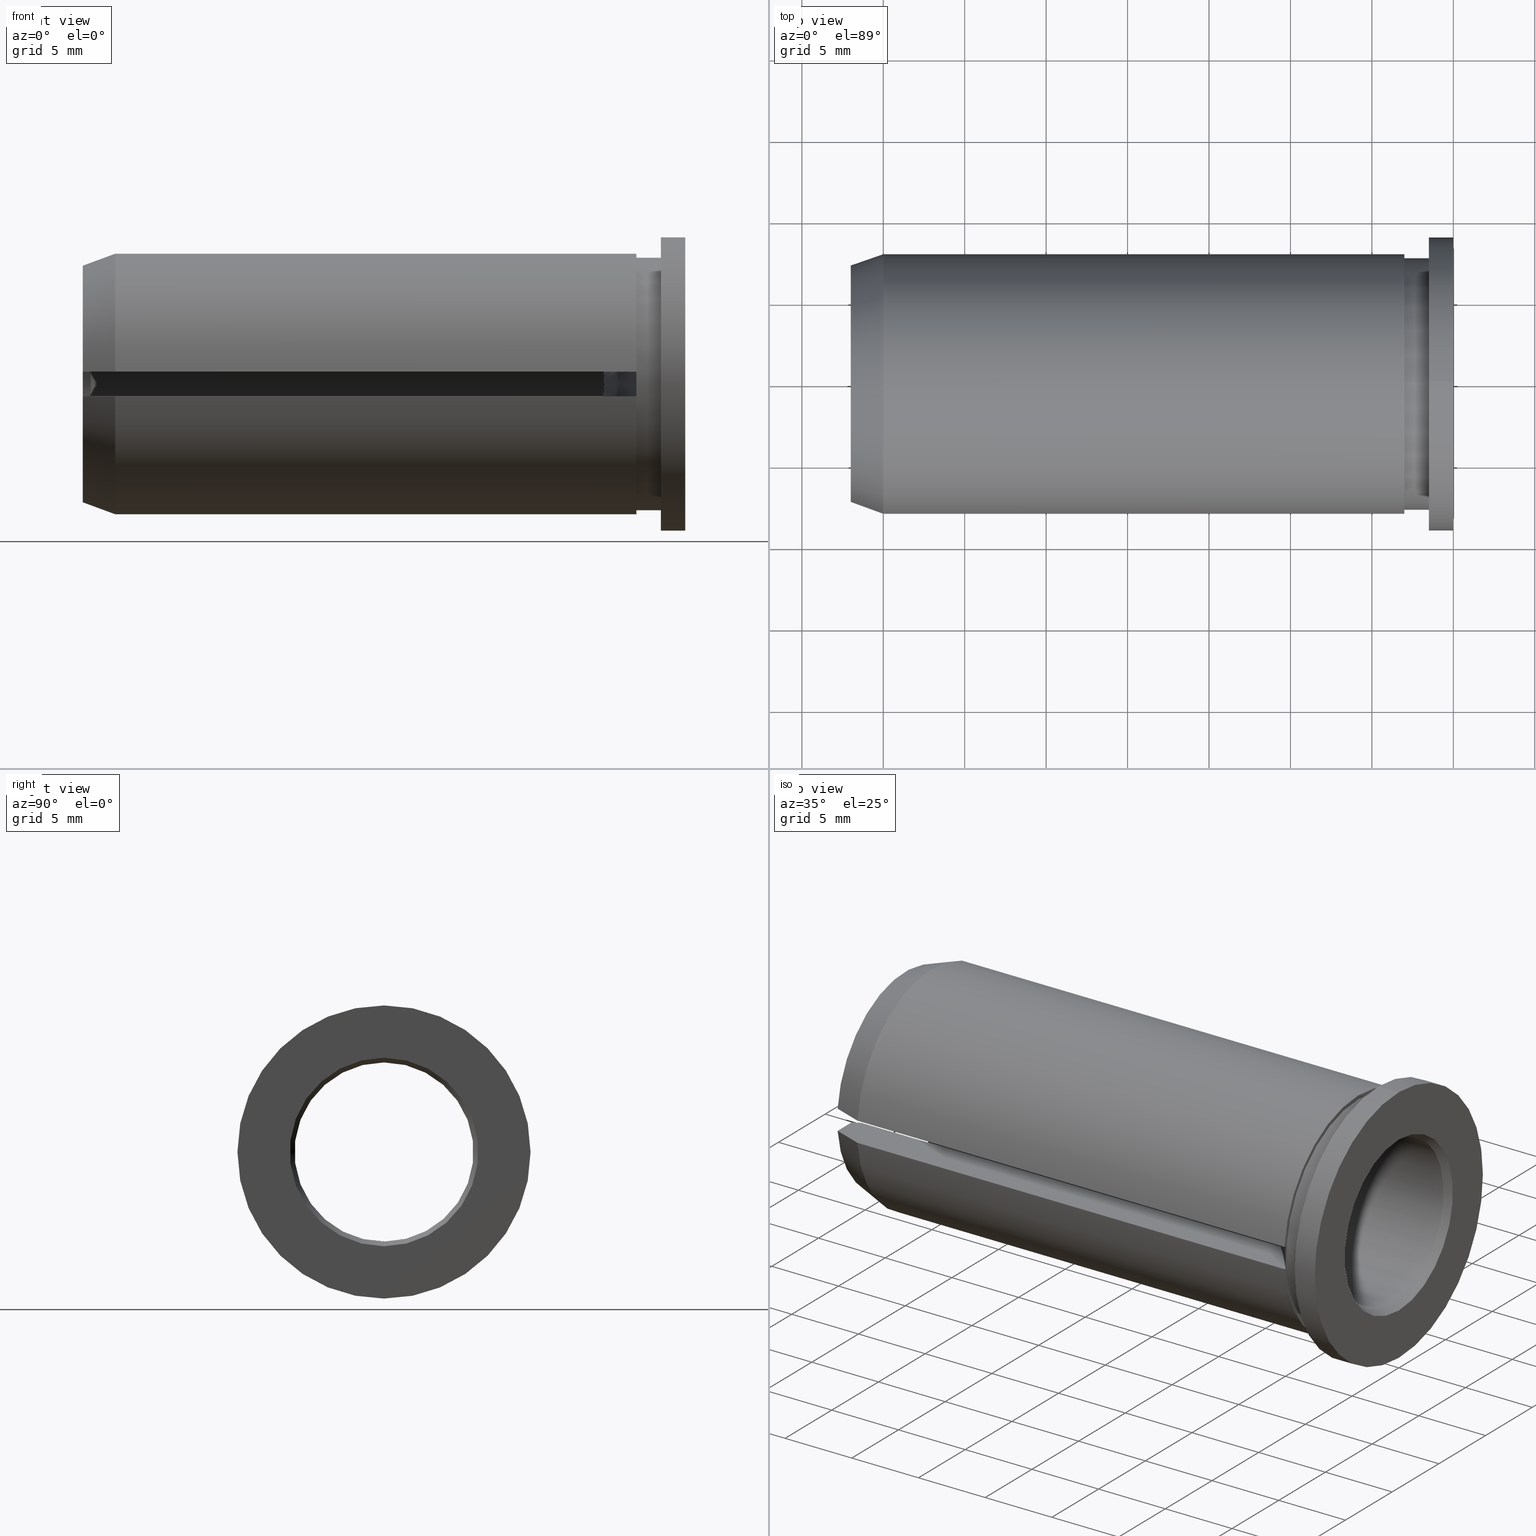
[diagram: canonical four-view strip — front | top / right | iso, engineering-drawing reading convention]
A machine part, canonical four-view strip (front | top / right | iso — engineering-drawing reading convention). The complete STEP part file that produces these views, byte-faithful:
ISO-10303-21;
HEADER;
FILE_DESCRIPTION (( 'STEP AP214' ),
    '1' );
FILE_NAME ('U11.U16.001.037.STEP',
    '2020-08-14T11:07:08',
    ( '' ),
    ( '' ),
    'SwSTEP 2.0',
    'SolidWorks 2017',
    '' );
FILE_SCHEMA (( 'AUTOMOTIVE_DESIGN' ));
ENDSEC;

DATA;
#1 = FACE_OUTER_BOUND ( 'NONE', #181, .T. ) ;
#2 = DIRECTION ( 'NONE',  ( -1.000000000000000000, -0.0000000000000000000, -0.0000000000000000000 ) ) ;
#3 = ORIENTED_EDGE ( 'NONE', *, *, #169, .F. ) ;
#4 = ORIENTED_EDGE ( 'NONE', *, *, #369, .F. ) ;
#5 = CARTESIAN_POINT ( 'NONE',  ( -5.026359045876161800, -5.448623679425841400, -0.7500000000000000000 ) ) ;
#6 = CARTESIAN_POINT ( 'NONE',  ( -37.00000000000000000, -7.233280709968928700, -0.7500000000000000000 ) ) ;
#7 = SURFACE_STYLE_FILL_AREA ( #55 ) ;
#8 = CIRCLE ( 'NONE', #173, 5.788675134594814000 ) ;
#9 =( GEOMETRIC_REPRESENTATION_CONTEXT ( 3 ) GLOBAL_UNCERTAINTY_ASSIGNED_CONTEXT ( ( #93 ) ) GLOBAL_UNIT_ASSIGNED_CONTEXT ( ( #222, #191, #195 ) ) REPRESENTATION_CONTEXT ( 'NONE', 'WORKASPACE' ) );
#10 = B_SPLINE_CURVE_WITH_KNOTS ( 'NONE', 3,
 ( #270, #239, #271, #413 ),
 .UNSPECIFIED., .F., .F.,
 ( 4, 4 ),
 ( 0.009711911398750116400, 0.01184148182100318500 ),
 .UNSPECIFIED. ) ;
#11 = DIRECTION ( 'NONE',  ( 1.000000000000000000, 0.0000000000000000000, 0.0000000000000000000 ) ) ;
#12 = CARTESIAN_POINT ( 'NONE',  ( -3.000000000000002700, -7.836232103263177400, -0.7500000000000000000 ) ) ;
#13 = B_SPLINE_CURVE_WITH_KNOTS ( 'NONE', 3,
 ( #204, #72, #299, #6 ),
 .UNSPECIFIED., .F., .F.,
 ( 4, 4 ),
 ( 0.009711911398750116400, 0.01184148182100318500 ),
 .UNSPECIFIED. ) ;
#14 = PLANE ( 'NONE',  #251 ) ;
#15 = FACE_BOUND ( 'NONE', #287, .T. ) ;
#16 = ORIENTED_EDGE ( 'NONE', *, *, #98, .T. ) ;
#17 = DIRECTION ( 'NONE',  ( 0.0000000000000000000, 0.0000000000000000000, 1.000000000000000000 ) ) ;
#18 = AXIS2_PLACEMENT_3D ( 'NONE', #117, #309, #109 ) ;
#19 = CARTESIAN_POINT ( 'NONE',  ( 0.0000000000000000000, 0.0000000000000000000, 0.0000000000000000000 ) ) ;
#20 = DIRECTION ( 'NONE',  ( 0.0000000000000000000, 1.000000000000000000, 0.0000000000000000000 ) ) ;
#21 = ORIENTED_EDGE ( 'NONE', *, *, #199, .F. ) ;
#22 = DIRECTION ( 'NONE',  ( -1.000000000000000000, 0.0000000000000000000, 0.0000000000000000000 ) ) ;
#23 = ADVANCED_FACE ( 'NONE', ( #263, #306 ), #261, .T. ) ;
#24 = CARTESIAN_POINT ( 'NONE',  ( -36.50000000000000000, -5.448623679425841400, -0.7500000000000000000 ) ) ;
#25 = LINE ( 'NONE', #48, #281 ) ;
#26 = MECHANICAL_DESIGN_GEOMETRIC_PRESENTATION_REPRESENTATION (  '', ( #229 ), #331 ) ;
#27 = ORIENTED_EDGE ( 'NONE', *, *, #377, .F. ) ;
#28 = APPLICATION_PROTOCOL_DEFINITION ( 'draft international standard', 'automotive_design', 1998, #395 ) ;
#29 =( NAMED_UNIT ( * ) PLANE_ANGLE_UNIT ( ) SI_UNIT ( $, .RADIAN. ) );
#30 = PRODUCT_DEFINITION_CONTEXT ( 'detailed design', #395, 'design' ) ;
#31 = DIRECTION ( 'NONE',  ( 1.000000000000000000, 0.0000000000000000000, 0.0000000000000000000 ) ) ;
#32 = ORIENTED_EDGE ( 'NONE', *, *, #308, .F. ) ;
#33 = LINE ( 'NONE', #234, #378 ) ;
#34 = ORIENTED_EDGE ( 'NONE', *, *, #170, .F. ) ;
#35 = CARTESIAN_POINT ( 'NONE',  ( -4.961795163846606900, -5.517448399587009600, 0.2500000000000010000 ) ) ;
#36 = CARTESIAN_POINT ( 'NONE',  ( -37.00000000000000000, -5.739883257861286800, 0.7500000000000000000 ) ) ;
#37 = EDGE_CURVE ( 'NONE', #159, #406, #178, .T. ) ;
#38 = VERTEX_POINT ( 'NONE', #134 ) ;
#39 = ORIENTED_EDGE ( 'NONE', *, *, #215, .F. ) ;
#40 = CARTESIAN_POINT ( 'NONE',  ( -34.99999999999999300, 0.0000000000000000000, 0.0000000000000000000 ) ) ;
#41 = PLANE ( 'NONE',  #138 ) ;
#42 = ORIENTED_EDGE ( 'NONE', *, *, #410, .T. ) ;
#43 = DIRECTION ( 'NONE',  ( 0.0000000000000000000, 0.0000000000000000000, 1.000000000000000000 ) ) ;
#44 = AXIS2_PLACEMENT_3D ( 'NONE', #254, #161, #221 ) ;
#45 = DIRECTION ( 'NONE',  ( -0.0000000000000000000, 0.0000000000000000000, -1.000000000000000000 ) ) ;
#46 = CARTESIAN_POINT ( 'NONE',  ( -36.50000000000000000, -5.448623679425841400, -0.7500000000000000000 ) ) ;
#47 = ADVANCED_FACE ( 'NONE', ( #357 ), #88, .T. ) ;
#48 = CARTESIAN_POINT ( 'NONE',  ( -38.58775536857143600, -5.448623679425841400, -0.7500000000000000000 ) ) ;
#49 = CIRCLE ( 'NONE', #44, 5.788675134594814900 ) ;
#50 = EDGE_LOOP ( 'NONE', ( #60 ) ) ;
#51 = ORIENTED_EDGE ( 'NONE', *, *, #128, .F. ) ;
#52 = DIRECTION ( 'NONE',  ( -0.0000000000000000000, -0.0000000000000000000, 1.000000000000000000 ) ) ;
#53 = DIRECTION ( 'NONE',  ( 1.000000000000000000, 0.0000000000000000000, 0.0000000000000000000 ) ) ;
#54 = FACE_OUTER_BOUND ( 'NONE', #314, .T. ) ;
#55 = FILL_AREA_STYLE ('',( #282 ) ) ;
#56 = ORIENTED_EDGE ( 'NONE', *, *, #369, .T. ) ;
#57 = DIRECTION ( 'NONE',  ( 0.0000000000000000000, 0.0000000000000000000, 1.000000000000000000 ) ) ;
#58 = EDGE_CURVE ( 'NONE', #231, #231, #208, .T. ) ;
#59 = AXIS2_PLACEMENT_3D ( 'NONE', #330, #360, #86 ) ;
#60 = ORIENTED_EDGE ( 'NONE', *, *, #169, .T. ) ;
#61 = EDGE_LOOP ( 'NONE', ( #363 ) ) ;
#62 = CARTESIAN_POINT ( 'NONE',  ( -1.500000000000001300, 0.0000000000000000000, 7.750000000000000000 ) ) ;
#63 = UNCERTAINTY_MEASURE_WITH_UNIT (LENGTH_MEASURE( 1.000000000000000100E-005 ), #95, 'distance_accuracy_value', 'NONE');
#64 = EDGE_CURVE ( 'NONE', #319, #319, #136, .T. ) ;
#65 = VECTOR ( 'NONE', #20, 1000.000000000000000 ) ;
#66 = EDGE_LOOP ( 'NONE', ( #70, #116, #383, #352 ) ) ;
#67 = AXIS2_PLACEMENT_3D ( 'NONE', #129, #130, #253 ) ;
#68 = CARTESIAN_POINT ( 'NONE',  ( -38.58775536857143600, 0.0000000000000000000, 0.0000000000000000000 ) ) ;
#69 = FACE_OUTER_BOUND ( 'NONE', #252, .T. ) ;
#70 = ORIENTED_EDGE ( 'NONE', *, *, #240, .T. ) ;
#71 = EDGE_CURVE ( 'NONE', #171, #275, #294, .T. ) ;
#72 = CARTESIAN_POINT ( 'NONE',  ( -35.66670156923833400, -7.721033178614087300, -0.7500000000000000000 ) ) ;
#73 = CARTESIAN_POINT ( 'NONE',  ( -38.58775536857143600, -5.448623679425841400, 0.7500000000000000000 ) ) ;
#74 = CIRCLE ( 'NONE', #97, 7.750000000000000000 ) ;
#75 = CARTESIAN_POINT ( 'NONE',  ( -36.83331444535005500, -5.642829254337529600, 0.7500000000000000000 ) ) ;
#76 = DIRECTION ( 'NONE',  ( 0.0000000000000000000, 0.0000000000000000000, 1.000000000000000000 ) ) ;
#77 = ORIENTED_EDGE ( 'NONE', *, *, #118, .F. ) ;
#78 = ORIENTED_EDGE ( 'NONE', *, *, #297, .T. ) ;
#79 = CARTESIAN_POINT ( 'NONE',  ( -37.00000000000000000, 7.272059531467589500, -0.7500000000000000000 ) ) ;
#80 = AXIS2_PLACEMENT_3D ( 'NONE', #85, #52, #53 ) ;
#81 = CARTESIAN_POINT ( 'NONE',  ( -3.000000000000002700, -7.964766161036996200, -0.7500000000000000000 ) ) ;
#82 = DIRECTION ( 'NONE',  ( -1.000000000000000000, 0.0000000000000000000, 0.0000000000000000000 ) ) ;
#83 = FACE_OUTER_BOUND ( 'NONE', #61, .T. ) ;
#84 = EDGE_LOOP ( 'NONE', ( #32 ) ) ;
#85 = CARTESIAN_POINT ( 'NONE',  ( -27.99999999999999600, -27.00000000000000000, -0.7500000000000000000 ) ) ;
#86 = DIRECTION ( 'NONE',  ( 0.0000000000000000000, 0.0000000000000000000, 1.000000000000000000 ) ) ;
#87 = EDGE_CURVE ( 'NONE', #358, #137, #146, .T. ) ;
#88 = CONICAL_SURFACE ( 'NONE', #212, 7.999999999999996400, 0.3490658503988667300 ) ;
#89 = DIRECTION ( 'NONE',  ( -1.000000000000000000, 0.0000000000000000000, -0.0000000000000000000 ) ) ;
#90 = EDGE_LOOP ( 'NONE', ( #422 ) ) ;
#91 = ORIENTED_EDGE ( 'NONE', *, *, #325, .T. ) ;
#92 = CARTESIAN_POINT ( 'NONE',  ( -3.000000000000000900, 7.750000000000000000, 0.0000000000000000000 ) ) ;
#93 = UNCERTAINTY_MEASURE_WITH_UNIT (LENGTH_MEASURE( 1.000000000000000100E-005 ), #222, 'distance_accuracy_value', 'NONE');
#94 = DIRECTION ( 'NONE',  ( -0.0000000000000000000, 0.0000000000000000000, 1.000000000000000000 ) ) ;
#95 =( LENGTH_UNIT ( ) NAMED_UNIT ( * ) SI_UNIT ( .MILLI., .METRE. ) );
#96 = FACE_OUTER_BOUND ( 'NONE', #50, .T. ) ;
#97 = AXIS2_PLACEMENT_3D ( 'NONE', #310, #145, #43 ) ;
#98 = EDGE_CURVE ( 'NONE', #38, #38, #219, .T. ) ;
#99 = FACE_BOUND ( 'NONE', #386, .T. ) ;
#100 = CARTESIAN_POINT ( 'NONE',  ( -5.026359045876161800, -5.448623679425841400, 0.7500000000000000000 ) ) ;
#101 = VERTEX_POINT ( 'NONE', #36 ) ;
#102 = ORIENTED_EDGE ( 'NONE', *, *, #218, .F. ) ;
#103 = DIRECTION ( 'NONE',  ( 0.0000000000000000000, 0.0000000000000000000, 1.000000000000000000 ) ) ;
#104 = PRODUCT_DEFINITION ( 'UNKNOWN', '', #359, #30 ) ;
#105 = DIRECTION ( 'NONE',  ( 0.0000000000000000000, 0.0000000000000000000, 1.000000000000000000 ) ) ;
#106 = CARTESIAN_POINT ( 'NONE',  ( -37.00000000000000000, -5.739883257861286800, -0.7500000000000000000 ) ) ;
#107 = CIRCLE ( 'NONE', #350, 5.500000000000000000 ) ;
#108 = CIRCLE ( 'NONE', #256, 9.000000000000000000 ) ;
#109 = DIRECTION ( 'NONE',  ( 0.0000000000000000000, 0.0000000000000000000, 1.000000000000000000 ) ) ;
#110 = EDGE_CURVE ( 'NONE', #275, #379, #33, .T. ) ;
#111 = DIRECTION ( 'NONE',  ( -1.000000000000000000, -0.0000000000000000000, -0.0000000000000000000 ) ) ;
#112 = VECTOR ( 'NONE', #246, 1000.000000000000000 ) ;
#113 = CARTESIAN_POINT ( 'NONE',  ( -37.00000000000000000, -7.233280709968928700, -0.7500000000000000000 ) ) ;
#114 = FACE_OUTER_BOUND ( 'NONE', #238, .T. ) ;
#115 = ORIENTED_EDGE ( 'NONE', *, *, #170, .T. ) ;
#116 = ORIENTED_EDGE ( 'NONE', *, *, #424, .T. ) ;
#117 = CARTESIAN_POINT ( 'NONE',  ( -34.99999999999999300, 0.0000000000000000000, 0.0000000000000000000 ) ) ;
#118 = EDGE_CURVE ( 'NONE', #168, #168, #108, .T. ) ;
#119 = LINE ( 'NONE', #280, #112 ) ;
#120 = ORIENTED_EDGE ( 'NONE', *, *, #424, .F. ) ;
#121 = DIRECTION ( 'NONE',  ( 1.000000000000000000, 0.0000000000000000000, 0.0000000000000000000 ) ) ;
#122 = DIRECTION ( 'NONE',  ( 0.0000000000000000000, 0.0000000000000000000, 1.000000000000000000 ) ) ;
#123 = CARTESIAN_POINT ( 'NONE',  ( -34.99999999999999300, -7.964766161036994400, -0.7500000000000000000 ) ) ;
#124 = DIRECTION ( 'NONE',  ( 1.000000000000000000, 0.0000000000000000000, 0.0000000000000000000 ) ) ;
#125 = PRESENTATION_STYLE_ASSIGNMENT (( #396 ) ) ;
#126 = ORIENTED_EDGE ( 'NONE', *, *, #118, .T. ) ;
#127 =( NAMED_UNIT ( * ) PLANE_ANGLE_UNIT ( ) SI_UNIT ( $, .RADIAN. ) );
#128 = EDGE_CURVE ( 'NONE', #373, #137, #13, .T. ) ;
#129 = CARTESIAN_POINT ( 'NONE',  ( -27.99999999999999600, -27.00000000000000000, 0.7500000000000000000 ) ) ;
#130 = DIRECTION ( 'NONE',  ( 0.0000000000000000000, 0.0000000000000000000, 1.000000000000000000 ) ) ;
#131 = SHAPE_DEFINITION_REPRESENTATION ( #155, #184 ) ;
#132 =( NAMED_UNIT ( * ) SI_UNIT ( $, .STERADIAN. ) SOLID_ANGLE_UNIT ( ) );
#133 = ORIENTED_EDGE ( 'NONE', *, *, #64, .F. ) ;
#134 = CARTESIAN_POINT ( 'NONE',  ( 0.0000000000000000000, 0.0000000000000000000, 9.000000000000000000 ) ) ;
#135 = EDGE_CURVE ( 'NONE', #201, #394, #375, .T. ) ;
#136 = CIRCLE ( 'NONE', #235, 7.750000000000000000 ) ;
#137 = VERTEX_POINT ( 'NONE', #113 ) ;
#138 = AXIS2_PLACEMENT_3D ( 'NONE', #305, #343, #149 ) ;
#139 = DIRECTION ( 'NONE',  ( -1.000000000000000000, -0.0000000000000000000, -0.0000000000000000000 ) ) ;
#140 = COLOUR_RGB ( '',0.6509803921568627600, 0.6196078431372549200, 0.5882352941176470800 ) ;
#141 = DIRECTION ( 'NONE',  ( -1.000000000000000000, -0.0000000000000000000, -0.0000000000000000000 ) ) ;
#142 = ORIENTED_EDGE ( 'NONE', *, *, #87, .T. ) ;
#143 = CARTESIAN_POINT ( 'NONE',  ( 0.0000000000000000000, 0.0000000000000000000, 0.0000000000000000000 ) ) ;
#144 = DIRECTION ( 'NONE',  ( -1.000000000000000000, -0.0000000000000000000, -0.0000000000000000000 ) ) ;
#145 = DIRECTION ( 'NONE',  ( -1.000000000000000000, -0.0000000000000000000, -0.0000000000000000000 ) ) ;
#146 = CIRCLE ( 'NONE', #295, 7.272059531467589500 ) ;
#147 = AXIS2_PLACEMENT_3D ( 'NONE', #207, #45, #249 ) ;
#148 = VERTEX_POINT ( 'NONE', #151 ) ;
#149 = DIRECTION ( 'NONE',  ( 0.0000000000000000000, 0.0000000000000000000, -1.000000000000000000 ) ) ;
#150 = ADVANCED_FACE ( 'NONE', ( #1 ), #162, .F. ) ;
#151 = CARTESIAN_POINT ( 'NONE',  ( -36.50000000000000000, -5.448623679425841400, 0.7500000000000000000 ) ) ;
#152 = ORIENTED_EDGE ( 'NONE', *, *, #377, .T. ) ;
#153 = PLANE ( 'NONE',  #259 ) ;
#154 = PLANE ( 'NONE',  #279 ) ;
#155 = PRODUCT_DEFINITION_SHAPE ( 'NONE', 'NONE',  #104 ) ;
#156 = ADVANCED_FACE ( 'NONE', ( #54 ), #411, .T. ) ;
#157 = CIRCLE ( 'NONE', #344, 8.000000000000000000 ) ;
#158 = DIRECTION ( 'NONE',  ( 0.0000000000000000000, 0.0000000000000000000, -1.000000000000000000 ) ) ;
#159 = VERTEX_POINT ( 'NONE', #381 ) ;
#160 = EDGE_CURVE ( 'NONE', #148, #406, #335, .T. ) ;
#161 = DIRECTION ( 'NONE',  ( -1.000000000000000000, -0.0000000000000000000, -0.0000000000000000000 ) ) ;
#162 = CONICAL_SURFACE ( 'NONE', #427, 5.788675134594814900, 0.5235987755983014800 ) ;
#163 = ORIENTED_EDGE ( 'NONE', *, *, #160, .T. ) ;
#164 = CLOSED_SHELL ( 'NONE', ( #23, #364, #258, #353, #150, #194, #47, #156, #397, #419, #225, #317, #255, #284 ) ) ;
#165 = CARTESIAN_POINT ( 'NONE',  ( -3.000000000000000900, 7.750000000000000000, -0.7500000000000000000 ) ) ;
#166 = EDGE_CURVE ( 'NONE', #275, #333, #157, .T. ) ;
#167 = SURFACE_SIDE_STYLE ('',( #206 ) ) ;
#168 = VERTEX_POINT ( 'NONE', #421 ) ;
#169 = EDGE_CURVE ( 'NONE', #197, #197, #74, .T. ) ;
#170 = EDGE_CURVE ( 'NONE', #101, #148, #269, .T. ) ;
#171 = VERTEX_POINT ( 'NONE', #408 ) ;
#172 = ORIENTED_EDGE ( 'NONE', *, *, #410, .F. ) ;
#173 = AXIS2_PLACEMENT_3D ( 'NONE', #19, #283, #416 ) ;
#174 = COLOUR_RGB ( '',0.6509803921568627600, 0.6196078431372549200, 0.5882352941176470800 ) ;
#175 = DIRECTION ( 'NONE',  ( -1.000000000000000000, -0.0000000000000000000, -0.0000000000000000000 ) ) ;
#176 = FACE_OUTER_BOUND ( 'NONE', #347, .T. ) ;
#177 = ORIENTED_EDGE ( 'NONE', *, *, #240, .F. ) ;
#178 = B_SPLINE_CURVE_WITH_KNOTS ( 'NONE', 3,
 ( #5, #302, #35, #100 ),
 .UNSPECIFIED., .F., .F.,
 ( 4, 4 ),
 ( 0.0000000000000000000, 0.001500000000000000000 ),
 .UNSPECIFIED. ) ;
#179 = PLANE ( 'NONE',  #147 ) ;
#180 = CARTESIAN_POINT ( 'NONE',  ( -36.50000000000000000, -5.448623679425841400, 0.7500000000000000000 ) ) ;
#181 = EDGE_LOOP ( 'NONE', ( #243, #402, #4, #34 ) ) ;
#182 = DIRECTION ( 'NONE',  ( 1.000000000000000000, 0.0000000000000000000, 0.0000000000000000000 ) ) ;
#183 = CARTESIAN_POINT ( 'NONE',  ( -37.00000000000000000, -5.739883257861286800, -0.7500000000000000000 ) ) ;
#184 = ADVANCED_BREP_SHAPE_REPRESENTATION ( 'U11.U16.001.037', ( #385, #264 ), #9 ) ;
#185 = LINE ( 'NONE', #165, #217 ) ;
#186 = FACE_OUTER_BOUND ( 'NONE', #232, .T. ) ;
#187 = CARTESIAN_POINT ( 'NONE',  ( -27.99999999999999600, -27.00000000000000000, 0.7500000000000000000 ) ) ;
#188 = PLANE ( 'NONE',  #272 ) ;
#189 = AXIS2_PLACEMENT_3D ( 'NONE', #285, #124, #158 ) ;
#190 = FACE_OUTER_BOUND ( 'NONE', #209, .T. ) ;
#191 =( NAMED_UNIT ( * ) PLANE_ANGLE_UNIT ( ) SI_UNIT ( $, .RADIAN. ) );
#192 = ORIENTED_EDGE ( 'NONE', *, *, #110, .T. ) ;
#193 = ORIENTED_EDGE ( 'NONE', *, *, #215, .T. ) ;
#194 = ADVANCED_FACE ( 'NONE', ( #69 ), #14, .F. ) ;
#195 =( NAMED_UNIT ( * ) SI_UNIT ( $, .STERADIAN. ) SOLID_ANGLE_UNIT ( ) );
#196 = AXIS2_PLACEMENT_3D ( 'NONE', #143, #141, #404 ) ;
#197 = VERTEX_POINT ( 'NONE', #62 ) ;
#198 = LINE ( 'NONE', #79, #346 ) ;
#199 = EDGE_CURVE ( 'NONE', #379, #373, #320, .T. ) ;
#200 = CIRCLE ( 'NONE', #389, 31.50000000000000700 ) ;
#201 = VERTEX_POINT ( 'NONE', #183 ) ;
#202 = EDGE_LOOP ( 'NONE', ( #133 ) ) ;
#203 = STYLED_ITEM ( 'NONE', ( #125 ), #184 ) ;
#204 = CARTESIAN_POINT ( 'NONE',  ( -34.99999999999999300, -7.964766161036994400, -0.7500000000000000000 ) ) ;
#205 = CARTESIAN_POINT ( 'NONE',  ( -0.5000000000000004400, 0.0000000000000000000, 0.0000000000000000000 ) ) ;
#206 = SURFACE_STYLE_FILL_AREA ( #291 ) ;
#207 = CARTESIAN_POINT ( 'NONE',  ( -27.99999999999999600, -27.00000000000000000, -0.7500000000000000000 ) ) ;
#208 = CIRCLE ( 'NONE', #233, 5.500000000000000000 ) ;
#209 = EDGE_LOOP ( 'NONE', ( #126 ) ) ;
#210 = CARTESIAN_POINT ( 'NONE',  ( -38.58775536857143600, 0.0000000000000000000, 0.0000000000000000000 ) ) ;
#211 = FACE_BOUND ( 'NONE', #90, .T. ) ;
#212 = AXIS2_PLACEMENT_3D ( 'NONE', #40, #340, #374 ) ;
#213 = EDGE_LOOP ( 'NONE', ( #321 ) ) ;
#214 = DIRECTION ( 'NONE',  ( -1.000000000000000000, 0.0000000000000000000, -0.0000000000000000000 ) ) ;
#215 = EDGE_CURVE ( 'NONE', #379, #358, #10, .T. ) ;
#216 = CARTESIAN_POINT ( 'NONE',  ( -34.99999999999999300, -7.964766161036994400, 0.7500000000000000000 ) ) ;
#217 = VECTOR ( 'NONE', #391, 1000.000000000000000 ) ;
#218 = EDGE_CURVE ( 'NONE', #137, #201, #198, .T. ) ;
#219 = CIRCLE ( 'NONE', #196, 9.000000000000000000 ) ;
#220 = ORIENTED_EDGE ( 'NONE', *, *, #334, .F. ) ;
#221 = DIRECTION ( 'NONE',  ( 0.0000000000000000000, 0.0000000000000000000, 1.000000000000000000 ) ) ;
#222 =( LENGTH_UNIT ( ) NAMED_UNIT ( * ) SI_UNIT ( .MILLI., .METRE. ) );
#223 = CIRCLE ( 'NONE', #67, 31.50000000000000700 ) ;
#224 = FILL_AREA_STYLE_COLOUR ( '', #174 ) ;
#225 = ADVANCED_FACE ( 'NONE', ( #99, #190 ), #41, .F. ) ;
#226 =( NAMED_UNIT ( * ) SI_UNIT ( $, .STERADIAN. ) SOLID_ANGLE_UNIT ( ) );
#227 = FACE_OUTER_BOUND ( 'NONE', #312, .T. ) ;
#228 = EDGE_LOOP ( 'NONE', ( #16 ) ) ;
#229 = STYLED_ITEM ( 'NONE', ( #371 ), #385 ) ;
#230 = DIRECTION ( 'NONE',  ( 0.0000000000000000000, 0.0000000000000000000, 1.000000000000000000 ) ) ;
#231 = VERTEX_POINT ( 'NONE', #324 ) ;
#232 = EDGE_LOOP ( 'NONE', ( #163, #172, #327, #192, #193, #307, #115 ) ) ;
#233 = AXIS2_PLACEMENT_3D ( 'NONE', #205, #144, #103 ) ;
#234 = CARTESIAN_POINT ( 'NONE',  ( -38.58775536857143600, -7.964766161036994400, 0.7500000000000000000 ) ) ;
#235 = AXIS2_PLACEMENT_3D ( 'NONE', #403, #175, #265 ) ;
#236 = DIRECTION ( 'NONE',  ( 0.0000000000000000000, 1.000000000000000000, 0.0000000000000000000 ) ) ;
#237 = LINE ( 'NONE', #315, #65 ) ;
#238 = EDGE_LOOP ( 'NONE', ( #250 ) ) ;
#239 = CARTESIAN_POINT ( 'NONE',  ( -35.66670156923833400, -7.721033178614087300, 0.7500000000000000000 ) ) ;
#240 = EDGE_CURVE ( 'NONE', #171, #292, #268, .T. ) ;
#241 = DIRECTION ( 'NONE',  ( 0.0000000000000000000, 0.0000000000000000000, -1.000000000000000000 ) ) ;
#242 =( GEOMETRIC_REPRESENTATION_CONTEXT ( 3 ) GLOBAL_UNCERTAINTY_ASSIGNED_CONTEXT ( ( #415 ) ) GLOBAL_UNIT_ASSIGNED_CONTEXT ( ( #329, #127, #132 ) ) REPRESENTATION_CONTEXT ( 'NONE', 'WORKASPACE' ) );
#243 = ORIENTED_EDGE ( 'NONE', *, *, #399, .T. ) ;
#244 = ORIENTED_EDGE ( 'NONE', *, *, #37, .T. ) ;
#245 = CARTESIAN_POINT ( 'NONE',  ( -38.58775536857143600, 0.0000000000000000000, 0.0000000000000000000 ) ) ;
#246 = DIRECTION ( 'NONE',  ( -1.000000000000000000, -0.0000000000000000000, -0.0000000000000000000 ) ) ;
#247 = FACE_OUTER_BOUND ( 'NONE', #66, .T. ) ;
#248 = CYLINDRICAL_SURFACE ( 'NONE', #80, 31.50000000000000700 ) ;
#249 = DIRECTION ( 'NONE',  ( -1.000000000000000000, 0.0000000000000000000, 0.0000000000000000000 ) ) ;
#250 = ORIENTED_EDGE ( 'NONE', *, *, #98, .F. ) ;
#251 = AXIS2_PLACEMENT_3D ( 'NONE', #409, #11, #376 ) ;
#252 = EDGE_LOOP ( 'NONE', ( #142, #260, #412, #220 ) ) ;
#253 = DIRECTION ( 'NONE',  ( -1.000000000000000000, 0.0000000000000000000, 0.0000000000000000000 ) ) ;
#254 = CARTESIAN_POINT ( 'NONE',  ( -37.00000000000000000, 0.0000000000000000000, 0.0000000000000000000 ) ) ;
#255 = ADVANCED_FACE ( 'NONE', ( #176 ), #179, .F. ) ;
#256 = AXIS2_PLACEMENT_3D ( 'NONE', #338, #370, #401 ) ;
#257 = CARTESIAN_POINT ( 'NONE',  ( -3.000000000000002700, 0.0000000000000000000, 7.750000000000000000 ) ) ;
#258 = ADVANCED_FACE ( 'NONE', ( #332, #341 ), #417, .F. ) ;
#259 = AXIS2_PLACEMENT_3D ( 'NONE', #351, #214, #318 ) ;
#260 = ORIENTED_EDGE ( 'NONE', *, *, #218, .T. ) ;
#261 = CYLINDRICAL_SURFACE ( 'NONE', #365, 9.000000000000000000 ) ;
#262 = ORIENTED_EDGE ( 'NONE', *, *, #160, .F. ) ;
#263 = FACE_OUTER_BOUND ( 'NONE', #398, .T. ) ;
#264 = AXIS2_PLACEMENT_3D ( 'NONE', #392, #57, #31 ) ;
#265 = DIRECTION ( 'NONE',  ( 0.0000000000000000000, 0.0000000000000000000, 1.000000000000000000 ) ) ;
#266 = DIRECTION ( 'NONE',  ( -1.000000000000000000, -0.0000000000000000000, -0.0000000000000000000 ) ) ;
#267 = CYLINDRICAL_SURFACE ( 'NONE', #59, 7.750000000000000000 ) ;
#268 = LINE ( 'NONE', #12, #326 ) ;
#269 = B_SPLINE_CURVE_WITH_KNOTS ( 'NONE', 3,
 ( #405, #75, #345, #180 ),
 .UNSPECIFIED., .F., .F.,
 ( 4, 4 ),
 ( 0.006318320823388439600, 0.006896967145803828600 ),
 .UNSPECIFIED. ) ;
#270 = CARTESIAN_POINT ( 'NONE',  ( -34.99999999999999300, -7.964766161036994400, 0.7500000000000000000 ) ) ;
#271 = CARTESIAN_POINT ( 'NONE',  ( -36.33337186691171900, -7.477214302540265800, 0.7500000000000000000 ) ) ;
#272 = AXIS2_PLACEMENT_3D ( 'NONE', #92, #89, #94 ) ;
#273 = VERTEX_POINT ( 'NONE', #390 ) ;
#274 = VECTOR ( 'NONE', #336, 1000.000000000000000 ) ;
#275 = VERTEX_POINT ( 'NONE', #322 ) ;
#276 = CARTESIAN_POINT ( 'NONE',  ( -3.000000000000002700, 0.0000000000000000000, 0.0000000000000000000 ) ) ;
#277 = ORIENTED_EDGE ( 'NONE', *, *, #37, .F. ) ;
#278 = DIRECTION ( 'NONE',  ( -1.000000000000000000, -0.0000000000000000000, -0.0000000000000000000 ) ) ;
#279 = AXIS2_PLACEMENT_3D ( 'NONE', #187, #355, #82 ) ;
#280 = CARTESIAN_POINT ( 'NONE',  ( -38.58775536857143600, -7.964766161036994400, -0.7500000000000000000 ) ) ;
#281 = VECTOR ( 'NONE', #121, 1000.000000000000000 ) ;
#282 = FILL_AREA_STYLE_COLOUR ( '', #140 ) ;
#283 = DIRECTION ( 'NONE',  ( -1.000000000000000000, -0.0000000000000000000, -0.0000000000000000000 ) ) ;
#284 = ADVANCED_FACE ( 'NONE', ( #186 ), #154, .T. ) ;
#285 = CARTESIAN_POINT ( 'NONE',  ( -0.5000000000000004400, 0.0000000000000000000, 0.0000000000000000000 ) ) ;
#286 = CYLINDRICAL_SURFACE ( 'NONE', #303, 5.500000000000000000 ) ;
#287 = EDGE_LOOP ( 'NONE', ( #328 ) ) ;
#288 = ORIENTED_EDGE ( 'NONE', *, *, #135, .F. ) ;
#289 = PRODUCT_RELATED_PRODUCT_CATEGORY ( 'part', '', ( #304 ) ) ;
#290 = SURFACE_STYLE_USAGE ( .BOTH. , #293 ) ;
#291 = FILL_AREA_STYLE ('',( #224 ) ) ;
#292 = VERTEX_POINT ( 'NONE', #387 ) ;
#293 = SURFACE_SIDE_STYLE ('',( #7 ) ) ;
#294 = LINE ( 'NONE', #298, #274 ) ;
#295 = AXIS2_PLACEMENT_3D ( 'NONE', #400, #139, #105 ) ;
#296 = ORIENTED_EDGE ( 'NONE', *, *, #128, .T. ) ;
#297 = EDGE_CURVE ( 'NONE', #292, #159, #200, .T. ) ;
#298 = CARTESIAN_POINT ( 'NONE',  ( -3.000000000000000900, 7.750000000000000000, 0.7500000000000000000 ) ) ;
#299 = CARTESIAN_POINT ( 'NONE',  ( -36.33337186691171900, -7.477214302540265800, -0.7500000000000000000 ) ) ;
#300 = ORIENTED_EDGE ( 'NONE', *, *, #199, .T. ) ;
#301 = PRESENTATION_LAYER_ASSIGNMENT (  '', '', ( #203 ) ) ;
#302 = CARTESIAN_POINT ( 'NONE',  ( -4.961795163846599800, -5.517448399587010500, -0.2499999999999996700 ) ) ;
#303 = AXIS2_PLACEMENT_3D ( 'NONE', #245, #313, #418 ) ;
#304 = PRODUCT ( 'U11.U16.001.037', 'U11.U16.001.037', '', ( #361 ) ) ;
#305 = CARTESIAN_POINT ( 'NONE',  ( -1.500000000000000400, 9.000000000000000000, 0.0000000000000000000 ) ) ;
#306 = FACE_OUTER_BOUND ( 'NONE', #228, .T. ) ;
#307 = ORIENTED_EDGE ( 'NONE', *, *, #334, .T. ) ;
#308 = EDGE_CURVE ( 'NONE', #273, #273, #8, .T. ) ;
#309 = DIRECTION ( 'NONE',  ( -1.000000000000000000, -0.0000000000000000000, -0.0000000000000000000 ) ) ;
#310 = CARTESIAN_POINT ( 'NONE',  ( -1.500000000000001300, 0.0000000000000000000, 0.0000000000000000000 ) ) ;
#311 = DIRECTION ( 'NONE',  ( -1.000000000000000000, -0.0000000000000000000, -0.0000000000000000000 ) ) ;
#312 = EDGE_LOOP ( 'NONE', ( #56, #91, #244, #262 ) ) ;
#313 = DIRECTION ( 'NONE',  ( -1.000000000000000000, -0.0000000000000000000, -0.0000000000000000000 ) ) ;
#314 = EDGE_LOOP ( 'NONE', ( #388, #152, #21, #420 ) ) ;
#315 = CARTESIAN_POINT ( 'NONE',  ( -37.00000000000000000, 7.272059531467589500, 0.7500000000000000000 ) ) ;
#316 = DIRECTION ( 'NONE',  ( -1.000000000000000000, -0.0000000000000000000, -0.0000000000000000000 ) ) ;
#317 = ADVANCED_FACE ( 'NONE', ( #426 ), #248, .F. ) ;
#318 = DIRECTION ( 'NONE',  ( -0.0000000000000000000, 0.0000000000000000000, 1.000000000000000000 ) ) ;
#319 = VERTEX_POINT ( 'NONE', #257 ) ;
#320 = CIRCLE ( 'NONE', #18, 7.999999999999996400 ) ;
#321 = ORIENTED_EDGE ( 'NONE', *, *, #58, .T. ) ;
#322 = CARTESIAN_POINT ( 'NONE',  ( -3.000000000000002700, -7.964766161036996200, 0.7500000000000000000 ) ) ;
#323 = AXIS2_PLACEMENT_3D ( 'NONE', #210, #311, #76 ) ;
#324 = CARTESIAN_POINT ( 'NONE',  ( -0.5000000000000004400, 0.0000000000000000000, 5.500000000000000000 ) ) ;
#325 = EDGE_CURVE ( 'NONE', #394, #159, #25, .T. ) ;
#326 = VECTOR ( 'NONE', #241, 1000.000000000000000 ) ;
#327 = ORIENTED_EDGE ( 'NONE', *, *, #71, .T. ) ;
#328 = ORIENTED_EDGE ( 'NONE', *, *, #308, .T. ) ;
#329 =( LENGTH_UNIT ( ) NAMED_UNIT ( * ) SI_UNIT ( .MILLI., .METRE. ) );
#330 = CARTESIAN_POINT ( 'NONE',  ( -38.58775536857143600, 0.0000000000000000000, 0.0000000000000000000 ) ) ;
#331 =( GEOMETRIC_REPRESENTATION_CONTEXT ( 3 ) GLOBAL_UNCERTAINTY_ASSIGNED_CONTEXT ( ( #63 ) ) GLOBAL_UNIT_ASSIGNED_CONTEXT ( ( #95, #29, #226 ) ) REPRESENTATION_CONTEXT ( 'NONE', 'WORKASPACE' ) );
#332 = FACE_OUTER_BOUND ( 'NONE', #84, .T. ) ;
#333 = VERTEX_POINT ( 'NONE', #81 ) ;
#334 = EDGE_CURVE ( 'NONE', #358, #101, #237, .T. ) ;
#335 = LINE ( 'NONE', #73, #366 ) ;
#336 = DIRECTION ( 'NONE',  ( 0.0000000000000000000, -1.000000000000000000, 0.0000000000000000000 ) ) ;
#337 = EDGE_LOOP ( 'NONE', ( #300, #296, #367, #39 ) ) ;
#338 = CARTESIAN_POINT ( 'NONE',  ( -1.500000000000001300, 0.0000000000000000000, 0.0000000000000000000 ) ) ;
#339 = CARTESIAN_POINT ( 'NONE',  ( -36.83331444535005500, -5.642829254337529600, -0.7500000000000000000 ) ) ;
#340 = DIRECTION ( 'NONE',  ( 1.000000000000000000, 0.0000000000000000000, 0.0000000000000000000 ) ) ;
#341 = FACE_BOUND ( 'NONE', #213, .T. ) ;
#342 = DIRECTION ( 'NONE',  ( 0.0000000000000000000, 0.0000000000000000000, 1.000000000000000000 ) ) ;
#343 = DIRECTION ( 'NONE',  ( 1.000000000000000000, 0.0000000000000000000, 0.0000000000000000000 ) ) ;
#344 = AXIS2_PLACEMENT_3D ( 'NONE', #276, #278, #17 ) ;
#345 = CARTESIAN_POINT ( 'NONE',  ( -36.66664677364383400, -5.545744458738215400, 0.7500000000000000000 ) ) ;
#346 = VECTOR ( 'NONE', #236, 1000.000000000000000 ) ;
#347 = EDGE_LOOP ( 'NONE', ( #288, #102, #51, #27, #120, #78, #380 ) ) ;
#348 = CARTESIAN_POINT ( 'NONE',  ( -37.00000000000000000, 0.0000000000000000000, 0.0000000000000000000 ) ) ;
#349 = DIRECTION ( 'NONE',  ( 0.0000000000000000000, 0.0000000000000000000, 1.000000000000000000 ) ) ;
#350 = AXIS2_PLACEMENT_3D ( 'NONE', #384, #316, #122 ) ;
#351 = CARTESIAN_POINT ( 'NONE',  ( 0.0000000000000000000, 5.788675134594814000, 0.0000000000000000000 ) ) ;
#352 = ORIENTED_EDGE ( 'NONE', *, *, #71, .F. ) ;
#353 = ADVANCED_FACE ( 'NONE', ( #83, #227 ), #286, .F. ) ;
#354 = MECHANICAL_DESIGN_GEOMETRIC_PRESENTATION_REPRESENTATION (  '', ( #203 ), #242 ) ;
#355 = DIRECTION ( 'NONE',  ( -0.0000000000000000000, 0.0000000000000000000, -1.000000000000000000 ) ) ;
#356 = CARTESIAN_POINT ( 'NONE',  ( -5.026359045876161800, -5.448623679425841400, 0.7500000000000000000 ) ) ;
#357 = FACE_OUTER_BOUND ( 'NONE', #337, .T. ) ;
#358 = VERTEX_POINT ( 'NONE', #414 ) ;
#359 = PRODUCT_DEFINITION_FORMATION_WITH_SPECIFIED_SOURCE ( 'ANY', '', #304, .NOT_KNOWN. ) ;
#360 = DIRECTION ( 'NONE',  ( -1.000000000000000000, -0.0000000000000000000, -0.0000000000000000000 ) ) ;
#361 = PRODUCT_CONTEXT ( 'NONE', #362, 'mechanical' ) ;
#362 = APPLICATION_CONTEXT ( 'automotive_design' ) ;
#363 = ORIENTED_EDGE ( 'NONE', *, *, #58, .F. ) ;
#364 = ADVANCED_FACE ( 'NONE', ( #114, #15 ), #153, .F. ) ;
#365 = AXIS2_PLACEMENT_3D ( 'NONE', #68, #2, #230 ) ;
#366 = VECTOR ( 'NONE', #182, 1000.000000000000000 ) ;
#367 = ORIENTED_EDGE ( 'NONE', *, *, #87, .F. ) ;
#368 = EDGE_LOOP ( 'NONE', ( #393, #177, #42, #277 ) ) ;
#369 = EDGE_CURVE ( 'NONE', #148, #394, #107, .T. ) ;
#370 = DIRECTION ( 'NONE',  ( -1.000000000000000000, -0.0000000000000000000, -0.0000000000000000000 ) ) ;
#371 = PRESENTATION_STYLE_ASSIGNMENT (( #290 ) ) ;
#372 = CARTESIAN_POINT ( 'NONE',  ( -36.66664677364383400, -5.545744458738215400, -0.7500000000000000000 ) ) ;
#373 = VERTEX_POINT ( 'NONE', #123 ) ;
#374 = DIRECTION ( 'NONE',  ( 0.0000000000000000000, 0.0000000000000000000, -1.000000000000000000 ) ) ;
#375 = B_SPLINE_CURVE_WITH_KNOTS ( 'NONE', 3,
 ( #106, #339, #372, #46 ),
 .UNSPECIFIED., .F., .F.,
 ( 4, 4 ),
 ( 0.006318320823388439600, 0.006896967145803828600 ),
 .UNSPECIFIED. ) ;
#376 = DIRECTION ( 'NONE',  ( 0.0000000000000000000, 0.0000000000000000000, -1.000000000000000000 ) ) ;
#377 = EDGE_CURVE ( 'NONE', #333, #373, #119, .T. ) ;
#378 = VECTOR ( 'NONE', #266, 1000.000000000000000 ) ;
#379 = VERTEX_POINT ( 'NONE', #216 ) ;
#380 = ORIENTED_EDGE ( 'NONE', *, *, #325, .F. ) ;
#381 = CARTESIAN_POINT ( 'NONE',  ( -5.026359045876161800, -5.448623679425841400, -0.7500000000000000000 ) ) ;
#382 = CARTESIAN_POINT ( 'NONE',  ( -27.99999999999999600, -27.00000000000000000, -0.7500000000000000000 ) ) ;
#383 = ORIENTED_EDGE ( 'NONE', *, *, #166, .F. ) ;
#384 = CARTESIAN_POINT ( 'NONE',  ( -36.50000000000000000, 0.0000000000000000000, 0.0000000000000000000 ) ) ;
#385 = MANIFOLD_SOLID_BREP ( 'Schnitt-Linear austragen1', #164 ) ;
#386 = EDGE_LOOP ( 'NONE', ( #3 ) ) ;
#387 = CARTESIAN_POINT ( 'NONE',  ( -3.000000000000002700, -7.836232103263177400, -0.7500000000000000000 ) ) ;
#388 = ORIENTED_EDGE ( 'NONE', *, *, #166, .T. ) ;
#389 = AXIS2_PLACEMENT_3D ( 'NONE', #382, #349, #22 ) ;
#390 = CARTESIAN_POINT ( 'NONE',  ( 0.0000000000000000000, 0.0000000000000000000, 5.788675134594814000 ) ) ;
#391 = DIRECTION ( 'NONE',  ( 0.0000000000000000000, -1.000000000000000000, 0.0000000000000000000 ) ) ;
#392 = CARTESIAN_POINT ( 'NONE',  ( 0.0000000000000000000, 0.0000000000000000000, 0.0000000000000000000 ) ) ;
#393 = ORIENTED_EDGE ( 'NONE', *, *, #297, .F. ) ;
#394 = VERTEX_POINT ( 'NONE', #24 ) ;
#395 = APPLICATION_CONTEXT ( 'automotive_design' ) ;
#396 = SURFACE_STYLE_USAGE ( .BOTH. , #167 ) ;
#397 = ADVANCED_FACE ( 'NONE', ( #247, #211 ), #188, .F. ) ;
#398 = EDGE_LOOP ( 'NONE', ( #77 ) ) ;
#399 = EDGE_CURVE ( 'NONE', #101, #201, #49, .T. ) ;
#400 = CARTESIAN_POINT ( 'NONE',  ( -37.00000000000000000, 0.0000000000000000000, 0.0000000000000000000 ) ) ;
#401 = DIRECTION ( 'NONE',  ( 0.0000000000000000000, 0.0000000000000000000, 1.000000000000000000 ) ) ;
#402 = ORIENTED_EDGE ( 'NONE', *, *, #135, .T. ) ;
#403 = CARTESIAN_POINT ( 'NONE',  ( -3.000000000000002700, 0.0000000000000000000, 0.0000000000000000000 ) ) ;
#404 = DIRECTION ( 'NONE',  ( 0.0000000000000000000, 0.0000000000000000000, 1.000000000000000000 ) ) ;
#405 = CARTESIAN_POINT ( 'NONE',  ( -37.00000000000000000, -5.739883257861286800, 0.7500000000000000000 ) ) ;
#406 = VERTEX_POINT ( 'NONE', #356 ) ;
#407 = PRESENTATION_LAYER_ASSIGNMENT (  '', '', ( #229 ) ) ;
#408 = CARTESIAN_POINT ( 'NONE',  ( -3.000000000000002700, -7.836232103263177400, 0.7500000000000000000 ) ) ;
#409 = CARTESIAN_POINT ( 'NONE',  ( -37.00000000000000000, 7.272059531467589500, 0.0000000000000000000 ) ) ;
#410 = EDGE_CURVE ( 'NONE', #171, #406, #223, .T. ) ;
#411 = CYLINDRICAL_SURFACE ( 'NONE', #323, 7.999999999999998200 ) ;
#412 = ORIENTED_EDGE ( 'NONE', *, *, #399, .F. ) ;
#413 = CARTESIAN_POINT ( 'NONE',  ( -37.00000000000000000, -7.233280709968928700, 0.7500000000000000000 ) ) ;
#414 = CARTESIAN_POINT ( 'NONE',  ( -37.00000000000000000, -7.233280709968928700, 0.7500000000000000000 ) ) ;
#415 = UNCERTAINTY_MEASURE_WITH_UNIT (LENGTH_MEASURE( 1.000000000000000100E-005 ), #329, 'distance_accuracy_value', 'NONE');
#416 = DIRECTION ( 'NONE',  ( 0.0000000000000000000, 0.0000000000000000000, 1.000000000000000000 ) ) ;
#417 = CONICAL_SURFACE ( 'NONE', #189, 5.500000000000000000, 0.5235987755983001500 ) ;
#418 = DIRECTION ( 'NONE',  ( 0.0000000000000000000, 0.0000000000000000000, 1.000000000000000000 ) ) ;
#419 = ADVANCED_FACE ( 'NONE', ( #425, #96 ), #267, .T. ) ;
#420 = ORIENTED_EDGE ( 'NONE', *, *, #110, .F. ) ;
#421 = CARTESIAN_POINT ( 'NONE',  ( -1.500000000000001300, 0.0000000000000000000, 9.000000000000000000 ) ) ;
#422 = ORIENTED_EDGE ( 'NONE', *, *, #64, .T. ) ;
#423 = APPLICATION_PROTOCOL_DEFINITION ( 'draft international standard', 'automotive_design', 1998, #362 ) ;
#424 = EDGE_CURVE ( 'NONE', #292, #333, #185, .T. ) ;
#425 = FACE_OUTER_BOUND ( 'NONE', #202, .T. ) ;
#426 = FACE_OUTER_BOUND ( 'NONE', #368, .T. ) ;
#427 = AXIS2_PLACEMENT_3D ( 'NONE', #348, #111, #342 ) ;
ENDSEC;
END-ISO-10303-21;
